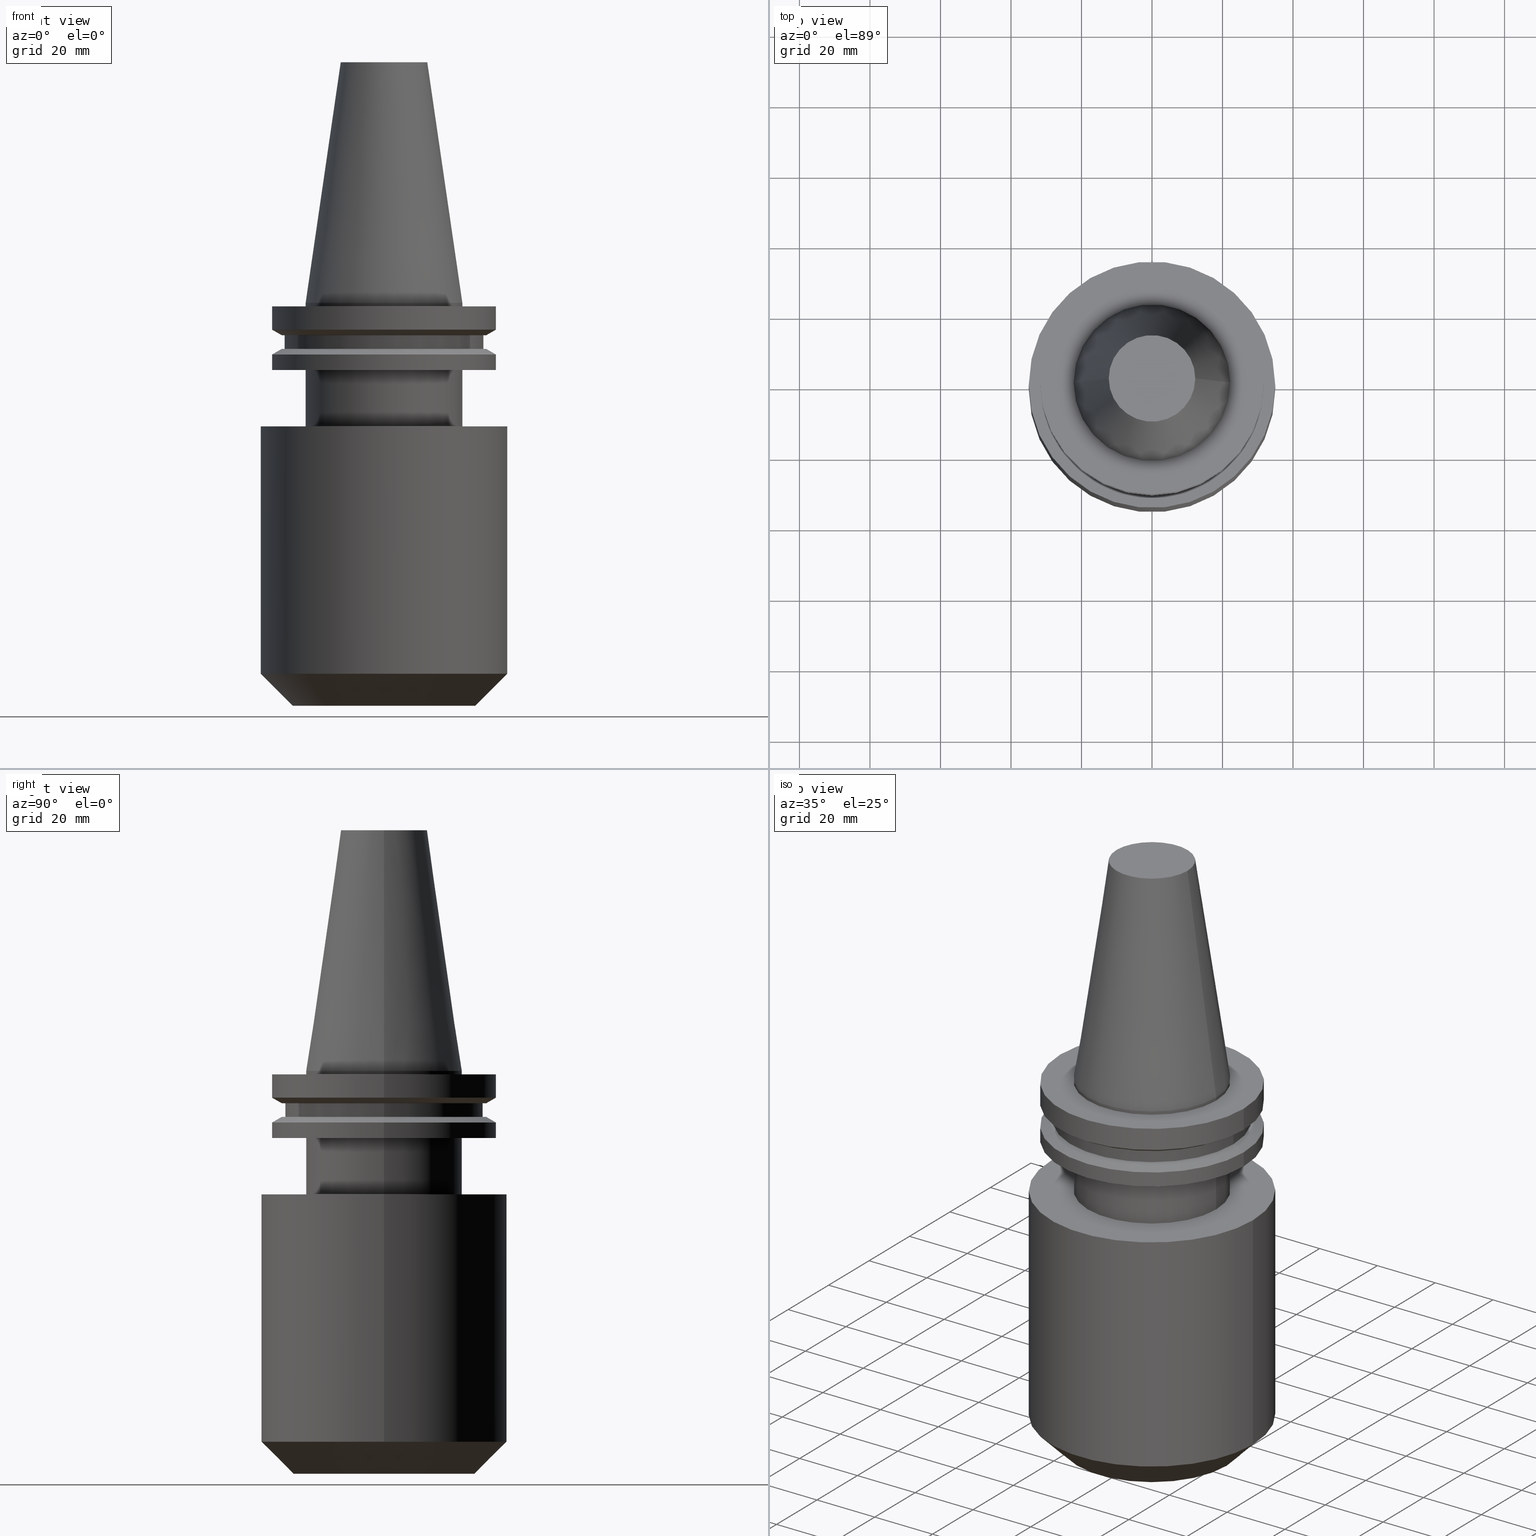
[diagram: canonical four-view strip — front | top / right | iso, engineering-drawing reading convention]
A machine part, canonical four-view strip (front | top / right | iso — engineering-drawing reading convention). The complete STEP part file that produces these views, byte-faithful:
ISO-10303-21;
HEADER;
FILE_DESCRIPTION (( 'STEP AP203' ),
    '1' );
FILE_NAME ('BCV40-EM1_250-4_5.STEP',
    '2022-02-23T14:51:00',
    ( '' ),
    ( '' ),
    'SwSTEP 2.0',
    'SolidWorks 2021',
    '' );
FILE_SCHEMA (( 'CONFIG_CONTROL_DESIGN' ));
ENDSEC;

DATA;
#1 = DIRECTION ( 'NONE',  ( -0.000000000000000000, -0.000000000000000000, 1.000000000000000000 ) ) ;
#2 = CONICAL_SURFACE ( 'NONE', #367, 31.75000000000000000, 1.047197551196597853 ) ;
#3 = LINE ( 'NONE', #270, #128 ) ;
#4 = FACE_OUTER_BOUND ( 'NONE', #714, .T. ) ;
#5 = CARTESIAN_POINT ( 'NONE',  ( 0.000000000000000000, 0.000000000000000000, 68.25000000000000000 ) ) ;
#6 = CARTESIAN_POINT ( 'NONE',  ( -28.17999999999999972, 3.451054679997241634E-15, 68.25000000000000000 ) ) ;
#7 = DIRECTION ( 'NONE',  ( -0.000000000000000000, -0.000000000000000000, 1.000000000000000000 ) ) ;
#8 = CARTESIAN_POINT ( 'NONE',  ( 0.000000000000000000, 0.000000000000000000, 68.25000000000000000 ) ) ;
#9 = DIRECTION ( 'NONE',  ( -1.000000000000000000, 0.000000000000000000, -0.000000000000000000 ) ) ;
#10 = ADVANCED_FACE ( 'NONE', ( #363 ), #232, .T. ) ;
#11 = EDGE_CURVE ( 'NONE', #94, #536, #558, .T. ) ;
#12 = EDGE_LOOP ( 'NONE', ( #332, #701, #640, #564 ) ) ;
#13 = CIRCLE ( 'NONE', #646, 31.75000000000000000 ) ;
#14 = AXIS2_PLACEMENT_3D ( 'NONE', #670, #194, #132 ) ;
#15 = ORIENTED_EDGE ( 'NONE', *, *, #431, .F. ) ;
#16 = DIRECTION ( 'NONE',  ( -0.000000000000000000, -0.000000000000000000, 1.000000000000000000 ) ) ;
#17 = COORDINATED_UNIVERSAL_TIME_OFFSET ( 6, 0, .BEHIND. ) ;
#18 = ORIENTED_EDGE ( 'NONE', *, *, #478, .F. ) ;
#19 = DIRECTION ( 'NONE',  ( 0.8660254037844387076, 1.060575238724906915E-16, -0.4999999999999998890 ) ) ;
#20 = PERSON_AND_ORGANIZATION ( #126, #246 ) ;
#21 = ORIENTED_EDGE ( 'NONE', *, *, #75, .F. ) ;
#22 = ORIENTED_EDGE ( 'NONE', *, *, #479, .F. ) ;
#23 = ORIENTED_EDGE ( 'NONE', *, *, #327, .T. ) ;
#24 = DIRECTION ( 'NONE',  ( 1.000000000000000000, 0.000000000000000000, 0.000000000000000000 ) ) ;
#25 = CC_DESIGN_PERSON_AND_ORGANIZATION_ASSIGNMENT ( #145, #681, ( #425 ) ) ;
#26 = COORDINATED_UNIVERSAL_TIME_OFFSET ( 6, 0, .BEHIND. ) ;
#27 = CARTESIAN_POINT ( 'NONE',  ( 0.000000000000000000, 0.000000000000000000, -35.04999999999999716 ) ) ;
#28 = ORIENTED_EDGE ( 'NONE', *, *, #830, .F. ) ;
#29 = AXIS2_PLACEMENT_3D ( 'NONE', #754, #276, #550 ) ;
#30 = PLANE ( 'NONE',  #244 ) ;
#31 = CARTESIAN_POINT ( 'NONE',  ( 0.000000000000000000, 0.000000000000000000, 0.000000000000000000 ) ) ;
#32 = ORIENTED_EDGE ( 'NONE', *, *, #274, .F. ) ;
#33 = CARTESIAN_POINT ( 'NONE',  ( -15.87500000000000000, 1.944126793646423238E-15, -114.2999999999999972 ) ) ;
#34 = EDGE_LOOP ( 'NONE', ( #500, #263 ) ) ;
#35 = DIRECTION ( 'NONE',  ( 1.000000000000000000, 0.000000000000000000, 0.000000000000000000 ) ) ;
#36 = COORDINATED_UNIVERSAL_TIME_OFFSET ( 6, 0, .BEHIND. ) ;
#37 = CARTESIAN_POINT ( 'NONE',  ( 28.17999999999999972, 0.000000000000000000, 68.25000000000000000 ) ) ;
#38 = ORIENTED_EDGE ( 'NONE', *, *, #310, .T. ) ;
#39 = DIRECTION ( 'NONE',  ( -0.1443082272672999711, 0.000000000000000000, -0.9895327864921755756 ) ) ;
#40 = EDGE_CURVE ( 'NONE', #390, #513, #747, .T. ) ;
#41 = VERTEX_POINT ( 'NONE', #554 ) ;
#42 = DIRECTION ( 'NONE',  ( -0.000000000000000000, -0.000000000000000000, 1.000000000000000000 ) ) ;
#43 = VECTOR ( 'NONE', #74, 1000.000000000000000 ) ;
#44 = DATE_AND_TIME ( #308, #58 ) ;
#45 = CC_DESIGN_SECURITY_CLASSIFICATION ( #594, ( #85 ) ) ;
#46 = ORIENTED_EDGE ( 'NONE', *, *, #542, .T. ) ;
#47 = CARTESIAN_POINT ( 'NONE',  ( 22.22500000000000142, 0.000000000000000000, -19.04999999999999716 ) ) ;
#48 = DIRECTION ( 'NONE',  ( 0.8660254037844389297, 0.000000000000000000, 0.4999999999999995004 ) ) ;
#49 = ORIENTED_EDGE ( 'NONE', *, *, #849, .T. ) ;
#50 = DIRECTION ( 'NONE',  ( 0.000000000000000000, 0.000000000000000000, -1.000000000000000000 ) ) ;
#51 = ORIENTED_EDGE ( 'NONE', *, *, #849, .F. ) ;
#52 = DIRECTION ( 'NONE',  ( 1.000000000000000000, 0.000000000000000000, 0.000000000000000000 ) ) ;
#53 = CARTESIAN_POINT ( 'NONE',  ( 0.000000000000000000, 0.000000000000000000, -19.04999999999999716 ) ) ;
#54 = EDGE_LOOP ( 'NONE', ( #828, #757 ) ) ;
#55 = AXIS2_PLACEMENT_3D ( 'NONE', #149, #481, #610 ) ;
#56 = FACE_BOUND ( 'NONE', #238, .T. ) ;
#57 = AXIS2_PLACEMENT_3D ( 'NONE', #395, #791, #663 ) ;
#58 = LOCAL_TIME ( 8, 51, 0.000000000000000000, #36 ) ;
#59 = DIRECTION ( 'NONE',  ( 0.000000000000000000, 0.000000000000000000, -1.000000000000000000 ) ) ;
#60 = EDGE_CURVE ( 'NONE', #41, #95, #396, .T. ) ;
#61 = ORIENTED_EDGE ( 'NONE', *, *, #357, .T. ) ;
#62 = PLANE ( 'NONE',  #617 ) ;
#63 = DIRECTION ( 'NONE',  ( 1.000000000000000000, 0.000000000000000000, 0.000000000000000000 ) ) ;
#64 = CYLINDRICAL_SURFACE ( 'NONE', #14, 34.95000000000000284 ) ;
#65 = EDGE_CURVE ( 'NONE', #516, #364, #545, .T. ) ;
#66 = DIRECTION ( 'NONE',  ( -0.000000000000000000, -0.000000000000000000, 1.000000000000000000 ) ) ;
#67 = EDGE_CURVE ( 'NONE', #838, #120, #710, .T. ) ;
#68 = AXIS2_PLACEMENT_3D ( 'NONE', #829, #628, #87 ) ;
#69 = AXIS2_PLACEMENT_3D ( 'NONE', #8, #543, #376 ) ;
#70 = ADVANCED_FACE ( 'NONE', ( #129 ), #602, .T. ) ;
#71 = AXIS2_PLACEMENT_3D ( 'NONE', #31, #811, #428 ) ;
#72 = DIRECTION ( 'NONE',  ( -0.000000000000000000, -0.000000000000000000, 1.000000000000000000 ) ) ;
#73 = LINE ( 'NONE', #713, #293 ) ;
#74 = DIRECTION ( 'NONE',  ( -0.8660254037844389297, 1.060575238724907285E-16, 0.4999999999999995004 ) ) ;
#75 = EDGE_CURVE ( 'NONE', #513, #390, #816, .T. ) ;
#76 = PERSON_AND_ORGANIZATION ( #126, #246 ) ;
#77 = EDGE_LOOP ( 'NONE', ( #51, #147, #629, #730 ) ) ;
#78 = LINE ( 'NONE', #486, #672 ) ;
#79 = PERSON_AND_ORGANIZATION_ROLE ( 'creator' ) ;
#80 = AXIS2_PLACEMENT_3D ( 'NONE', #613, #16, #776 ) ;
#81 = CIRCLE ( 'NONE', #207, 22.22500000000000142 ) ;
#82 = AXIS2_PLACEMENT_3D ( 'NONE', #469, #59, #846 ) ;
#83 = ORIENTED_EDGE ( 'NONE', *, *, #386, .T. ) ;
#84 = DIRECTION ( 'NONE',  ( -0.000000000000000000, -0.000000000000000000, 1.000000000000000000 ) ) ;
#85 = PRODUCT_DEFINITION_FORMATION_WITH_SPECIFIED_SOURCE ( 'ANY', '', #425, .NOT_KNOWN. ) ;
#86 = MECHANICAL_CONTEXT ( 'NONE', #335, 'mechanical' ) ;
#87 = DIRECTION ( 'NONE',  ( 1.000000000000000000, 0.000000000000000000, 0.000000000000000000 ) ) ;
#88 = EDGE_LOOP ( 'NONE', ( #312, #309 ) ) ;
#89 = CARTESIAN_POINT ( 'NONE',  ( 0.000000000000000000, 0.000000000000000000, -9.205000000000005400 ) ) ;
#90 = CALENDAR_DATE ( 2022, 23, 2 ) ;
#91 = ORIENTED_EDGE ( 'NONE', *, *, #450, .F. ) ;
#92 = LINE ( 'NONE', #344, #789 ) ;
#93 = ORIENTED_EDGE ( 'NONE', *, *, #203, .F. ) ;
#94 = VERTEX_POINT ( 'NONE', #136 ) ;
#95 = VERTEX_POINT ( 'NONE', #734 ) ;
#96 = CARTESIAN_POINT ( 'NONE',  ( 0.000000000000000000, 31.75000000000000000, -0.9999999999999995559 ) ) ;
#97 = CARTESIAN_POINT ( 'NONE',  ( 31.74999999999999289, 0.000000000000000000, -19.04999999999999716 ) ) ;
#98 = ORIENTED_EDGE ( 'NONE', *, *, #518, .F. ) ;
#99 = ORIENTED_EDGE ( 'NONE', *, *, #447, .T. ) ;
#100 = CIRCLE ( 'NONE', #382, 22.22500000000000142 ) ;
#101 = DIRECTION ( 'NONE',  ( 1.000000000000000000, 0.000000000000000000, 0.000000000000000000 ) ) ;
#102 = AXIS2_PLACEMENT_3D ( 'NONE', #627, #169, #436 ) ;
#103 = CC_DESIGN_APPROVAL ( #675, ( #85 ) ) ;
#104 = ORIENTED_EDGE ( 'NONE', *, *, #399, .F. ) ;
#105 = DIRECTION ( 'NONE',  ( 1.000000000000000000, 0.000000000000000000, 0.000000000000000000 ) ) ;
#106 = EDGE_LOOP ( 'NONE', ( #248, #812, #767, #321 ) ) ;
#107 = CARTESIAN_POINT ( 'NONE',  ( 0.000000000000000000, 0.000000000000000000, -13.05499999999999794 ) ) ;
#108 = ORIENTED_EDGE ( 'NONE', *, *, #355, .F. ) ;
#109 = DIRECTION ( 'NONE',  ( 1.000000000000000000, 0.000000000000000000, 0.000000000000000000 ) ) ;
#110 = EDGE_CURVE ( 'NONE', #516, #575, #330, .T. ) ;
#111 = CARTESIAN_POINT ( 'NONE',  ( -22.22500000000000142, 0.000000000000000000, 0.000000000000000000 ) ) ;
#112 = VERTEX_POINT ( 'NONE', #394 ) ;
#113 = FACE_OUTER_BOUND ( 'NONE', #12, .T. ) ;
#114 = AXIS2_PLACEMENT_3D ( 'NONE', #715, #637, #35 ) ;
#115 = PERSON_AND_ORGANIZATION_ROLE ( 'classification_officer' ) ;
#116 = CIRCLE ( 'NONE', #383, 12.27178102086201150 ) ;
#117 = ORIENTED_EDGE ( 'NONE', *, *, #156, .T. ) ;
#118 = CC_DESIGN_PERSON_AND_ORGANIZATION_ASSIGNMENT ( #685, #79, ( #744 ) ) ;
#119 = LINE ( 'NONE', #130, #139 ) ;
#120 = VERTEX_POINT ( 'NONE', #660 ) ;
#121 = FACE_OUTER_BOUND ( 'NONE', #106, .T. ) ;
#122 = ADVANCED_FACE ( 'NONE', ( #853 ), #779, .F. ) ;
#123 = CARTESIAN_POINT ( 'NONE',  ( 15.87500000000000000, 0.000000000000000000, -114.2999999999999972 ) ) ;
#124 = EDGE_CURVE ( 'NONE', #838, #625, #474, .T. ) ;
#125 = CARTESIAN_POINT ( 'NONE',  ( 0.000000000000000000, 0.000000000000000000, -9.205000000000005400 ) ) ;
#126 = PERSON ( 'UNSPECIFIED', 'UNSPECIFIED', 'UNSPECIFIED', ('UNSPECIFIED'), ('UNSPECIFIED'), ('UNSPECIFIED') ) ;
#127 = AXIS2_PLACEMENT_3D ( 'NONE', #284, #84, #405 ) ;
#128 = VECTOR ( 'NONE', #340, 1000.000000000000000 ) ;
#129 = FACE_OUTER_BOUND ( 'NONE', #786, .T. ) ;
#130 = CARTESIAN_POINT ( 'NONE',  ( -31.75000000000000000, 3.888253587292846476E-15, 68.25000000000000000 ) ) ;
#131 = EDGE_CURVE ( 'NONE', #562, #372, #173, .T. ) ;
#132 = DIRECTION ( 'NONE',  ( 1.000000000000000000, 0.000000000000000000, 0.000000000000000000 ) ) ;
#133 = LINE ( 'NONE', #679, #778 ) ;
#134 = CARTESIAN_POINT ( 'NONE',  ( 0.000000000000000000, 28.17999999999999972, -13.05499999999999794 ) ) ;
#135 = AXIS2_PLACEMENT_3D ( 'NONE', #836, #249, #245 ) ;
#136 = CARTESIAN_POINT ( 'NONE',  ( -31.75000000000000000, 3.888253587292846476E-15, -1.000000000000000888 ) ) ;
#138 = EDGE_CURVE ( 'NONE', #228, #381, #186, .T. ) ;
#137 = EDGE_LOOP ( 'NONE', ( #723, #294, #460, #379 ) ) ;
#139 = VECTOR ( 'NONE', #854, 1000.000000000000000 ) ;
#140 = ADVANCED_FACE ( 'NONE', ( #154 ), #2, .T. ) ;
#141 = VECTOR ( 'NONE', #733, 1000.000000000000000 ) ;
#142 = FACE_OUTER_BOUND ( 'NONE', #654, .T. ) ;
#143 = DIRECTION ( 'NONE',  ( 1.000000000000000000, 0.000000000000000000, 0.000000000000000000 ) ) ;
#144 = LINE ( 'NONE', #623, #43 ) ;
#145 = PERSON_AND_ORGANIZATION ( #126, #246 ) ;
#146 = ORIENTED_EDGE ( 'NONE', *, *, #694, .T. ) ;
#147 = ORIENTED_EDGE ( 'NONE', *, *, #40, .F. ) ;
#148 = EDGE_CURVE ( 'NONE', #364, #289, #410, .T. ) ;
#149 = CARTESIAN_POINT ( 'NONE',  ( 0.000000000000000000, 0.000000000000000000, -19.04999999999999716 ) ) ;
#150 = DIRECTION ( 'NONE',  ( 1.000000000000000000, 0.000000000000000000, 0.000000000000000000 ) ) ;
#151 = VECTOR ( 'NONE', #19, 1000.000000000000000 ) ;
#152 = CIRCLE ( 'NONE', #57, 31.75000000000000000 ) ;
#153 = DIRECTION ( 'NONE',  ( -0.000000000000000000, -0.000000000000000000, 1.000000000000000000 ) ) ;
#154 = FACE_OUTER_BOUND ( 'NONE', #250, .T. ) ;
#155 = DATE_AND_TIME ( #281, #790 ) ;
#156 = EDGE_CURVE ( 'NONE', #652, #553, #144, .T. ) ;
#157 = DIRECTION ( 'NONE',  ( 1.000000000000000000, 0.000000000000000000, 0.000000000000000000 ) ) ;
#158 = VERTEX_POINT ( 'NONE', #212 ) ;
#159 = EDGE_LOOP ( 'NONE', ( #177, #278 ) ) ;
#160 = DIRECTION ( 'NONE',  ( -0.000000000000000000, -0.000000000000000000, 1.000000000000000000 ) ) ;
#161 = DIRECTION ( 'NONE',  ( 1.000000000000000000, 0.000000000000000000, 0.000000000000000000 ) ) ;
#162 = ORIENTED_EDGE ( 'NONE', *, *, #478, .T. ) ;
#163 = DIRECTION ( 'NONE',  ( -0.000000000000000000, -0.000000000000000000, 1.000000000000000000 ) ) ;
#164 = ORIENTED_EDGE ( 'NONE', *, *, #542, .F. ) ;
#165 = DIRECTION ( 'NONE',  ( 0.000000000000000000, 0.000000000000000000, -1.000000000000000000 ) ) ;
#166 = DIRECTION ( 'NONE',  ( -0.000000000000000000, -0.000000000000000000, 1.000000000000000000 ) ) ;
#167 = APPROVAL_STATUS ( 'not_yet_approved' ) ;
#168 = ORIENTED_EDGE ( 'NONE', *, *, #657, .F. ) ;
#169 = DIRECTION ( 'NONE',  ( -0.000000000000000000, -0.000000000000000000, 1.000000000000000000 ) ) ;
#170 = EDGE_CURVE ( 'NONE', #41, #372, #556, .T. ) ;
#171 = EDGE_LOOP ( 'NONE', ( #716, #855, #495, #548 ) ) ;
#172 = EDGE_CURVE ( 'NONE', #235, #601, #326, .T. ) ;
#173 = CIRCLE ( 'NONE', #221, 22.22500000000000142 ) ;
#174 = CYLINDRICAL_SURFACE ( 'NONE', #265, 31.75000000000000000 ) ;
#175 = AXIS2_PLACEMENT_3D ( 'NONE', #586, #253, #52 ) ;
#176 = LINE ( 'NONE', #577, #738 ) ;
#177 = ORIENTED_EDGE ( 'NONE', *, *, #274, .T. ) ;
#178 = DIRECTION ( 'NONE',  ( 1.000000000000000000, 0.000000000000000000, 0.000000000000000000 ) ) ;
#179 = DIRECTION ( 'NONE',  ( 0.000000000000000000, 0.000000000000000000, -1.000000000000000000 ) ) ;
#180 = ORIENTED_EDGE ( 'NONE', *, *, #694, .F. ) ;
#181 = DIRECTION ( 'NONE',  ( -0.000000000000000000, -0.000000000000000000, 1.000000000000000000 ) ) ;
#182 = ORIENTED_EDGE ( 'NONE', *, *, #579, .T. ) ;
#183 = DIRECTION ( 'NONE',  ( -0.000000000000000000, -0.000000000000000000, 1.000000000000000000 ) ) ;
#184 = CC_DESIGN_PERSON_AND_ORGANIZATION_ASSIGNMENT ( #241, #844, ( #85 ) ) ;
#185 = CARTESIAN_POINT ( 'NONE',  ( -34.95000000000000284, 4.280140563019999423E-15, -105.2000000000000028 ) ) ;
#186 = CIRCLE ( 'NONE', #466, 34.95000000000000284 ) ;
#187 = AXIS2_PLACEMENT_3D ( 'NONE', #665, #400, #739 ) ;
#188 = DIRECTION ( 'NONE',  ( -1.000000000000000000, 0.000000000000000000, -0.000000000000000000 ) ) ;
#189 = EDGE_CURVE ( 'NONE', #612, #536, #78, .T. ) ;
#190 = FACE_OUTER_BOUND ( 'NONE', #280, .T. ) ;
#191 = CARTESIAN_POINT ( 'NONE',  ( -34.95000000000000284, 4.280140563019999423E-15, 0.000000000000000000 ) ) ;
#192 = DIRECTION ( 'NONE',  ( -0.000000000000000000, -0.000000000000000000, 1.000000000000000000 ) ) ;
#193 = VERTEX_POINT ( 'NONE', #216 ) ;
#194 = DIRECTION ( 'NONE',  ( -0.000000000000000000, -0.000000000000000000, 1.000000000000000000 ) ) ;
#195 = CIRCLE ( 'NONE', #796, 34.95000000000000284 ) ;
#196 = CIRCLE ( 'NONE', #689, 31.75000000000000000 ) ;
#197 = CIRCLE ( 'NONE', #677, 25.84999999999996945 ) ;
#198 = CARTESIAN_POINT ( 'NONE',  ( 0.000000000000000000, 0.000000000000000000, -114.2999999999999972 ) ) ;
#199 = AXIS2_PLACEMENT_3D ( 'NONE', #678, #595, #608 ) ;
#200 = CARTESIAN_POINT ( 'NONE',  ( 0.000000000000000000, 0.000000000000000000, -35.04999999999999716 ) ) ;
#201 = DIRECTION ( 'NONE',  ( 1.000000000000000000, 0.000000000000000000, 0.000000000000000000 ) ) ;
#202 = EDGE_CURVE ( 'NONE', #502, #570, #614, .T. ) ;
#203 = EDGE_CURVE ( 'NONE', #652, #239, #644, .T. ) ;
#204 = CARTESIAN_POINT ( 'NONE',  ( 31.75000000000000000, 0.000000000000000000, -7.605276606597335842 ) ) ;
#205 = DIRECTION ( 'NONE',  ( -0.000000000000000000, -0.000000000000000000, 1.000000000000000000 ) ) ;
#206 = AXIS2_PLACEMENT_3D ( 'NONE', #107, #42, #178 ) ;
#207 = AXIS2_PLACEMENT_3D ( 'NONE', #587, #254, #389 ) ;
#208 = FACE_OUTER_BOUND ( 'NONE', #611, .T. ) ;
#209 = DIRECTION ( 'NONE',  ( -1.000000000000000000, 0.000000000000000000, 0.000000000000000000 ) ) ;
#210 =( NAMED_UNIT ( * ) SI_UNIT ( $, .STERADIAN. ) SOLID_ANGLE_UNIT ( ) );
#211 = ADVANCED_FACE ( 'NONE', ( #416, #688 ), #759, .F. ) ;
#212 = CARTESIAN_POINT ( 'NONE',  ( -34.95000000000000284, 4.280140563019999423E-15, -35.04999999999999716 ) ) ;
#213 = APPROVAL ( #753, 'UNSPECIFIED' ) ;
#214 = DIRECTION ( 'NONE',  ( -0.000000000000000000, -0.000000000000000000, 1.000000000000000000 ) ) ;
#215 = DIRECTION ( 'NONE',  ( 1.000000000000000000, 0.000000000000000000, 0.000000000000000000 ) ) ;
#216 = CARTESIAN_POINT ( 'NONE',  ( 22.22500000000000142, 0.000000000000000000, -1.000000000000000888 ) ) ;
#217 = ADVANCED_FACE ( 'NONE', ( #412 ), #348, .F. ) ;
#218 = DIRECTION ( 'NONE',  ( 1.000000000000000000, 0.000000000000000000, 0.000000000000000000 ) ) ;
#219 = ORIENTED_EDGE ( 'NONE', *, *, #288, .F. ) ;
#220 = ADVANCED_FACE ( 'NONE', ( #240, #630 ), #30, .F. ) ;
#221 = AXIS2_PLACEMENT_3D ( 'NONE', #696, #7, #683 ) ;
#222 = ORIENTED_EDGE ( 'NONE', *, *, #170, .F. ) ;
#223 = VECTOR ( 'NONE', #768, 999.9999999999998863 ) ;
#224 = CIRCLE ( 'NONE', #490, 34.95000000000000284 ) ;
#225 = DIRECTION ( 'NONE',  ( 1.000000000000000000, 0.000000000000000000, 0.000000000000000000 ) ) ;
#226 = DIRECTION ( 'NONE',  ( 1.000000000000000000, 0.000000000000000000, 0.000000000000000000 ) ) ;
#227 = CARTESIAN_POINT ( 'NONE',  ( 28.97919780457008088, 3.718590885307660666E-15, -13.05499999999999794 ) ) ;
#228 = VERTEX_POINT ( 'NONE', #643 ) ;
#229 = EDGE_LOOP ( 'NONE', ( #650, #741, #99, #622 ) ) ;
#230 = FACE_OUTER_BOUND ( 'NONE', #621, .T. ) ;
#231 = ORIENTED_EDGE ( 'NONE', *, *, #60, .T. ) ;
#232 = CYLINDRICAL_SURFACE ( 'NONE', #255, 31.75000000000000000 ) ;
#233 = DIRECTION ( 'NONE',  ( -0.000000000000000000, -0.000000000000000000, 1.000000000000000000 ) ) ;
#234 = CARTESIAN_POINT ( 'NONE',  ( 0.000000000000000000, 0.000000000000000000, 0.000000000000000000 ) ) ;
#235 = VERTEX_POINT ( 'NONE', #296 ) ;
#236 = DIRECTION ( 'NONE',  ( 0.000000000000000000, -0.000000000000000000, 1.000000000000000000 ) ) ;
#237 = ADVANCED_FACE ( 'NONE', ( #504, #641 ), #649, .F. ) ;
#238 = EDGE_LOOP ( 'NONE', ( #287, #658 ) ) ;
#239 = VERTEX_POINT ( 'NONE', #377 ) ;
#240 = FACE_BOUND ( 'NONE', #34, .T. ) ;
#241 = PERSON_AND_ORGANIZATION ( #126, #246 ) ;
#242 = PLANE ( 'NONE',  #581 ) ;
#243 = EDGE_CURVE ( 'NONE', #705, #158, #195, .T. ) ;
#244 = AXIS2_PLACEMENT_3D ( 'NONE', #96, #782, #785 ) ;
#245 = DIRECTION ( 'NONE',  ( 1.000000000000000000, 0.000000000000000000, 0.000000000000000000 ) ) ;
#246 = ORGANIZATION ( 'UNSPECIFIED', 'UNSPECIFIED', '' ) ;
#247 = CYLINDRICAL_SURFACE ( 'NONE', #175, 22.22500000000000142 ) ;
#248 = ORIENTED_EDGE ( 'NONE', *, *, #574, .F. ) ;
#249 = DIRECTION ( 'NONE',  ( -0.000000000000000000, -0.000000000000000000, 1.000000000000000000 ) ) ;
#250 = EDGE_LOOP ( 'NONE', ( #452, #32, #815, #23 ) ) ;
#251 = CARTESIAN_POINT ( 'NONE',  ( -28.17999999999999972, 3.451054679997241634E-15, -13.05499999999999794 ) ) ;
#252 = ORIENTED_EDGE ( 'NONE', *, *, #607, .F. ) ;
#253 = DIRECTION ( 'NONE',  ( -0.000000000000000000, -0.000000000000000000, 1.000000000000000000 ) ) ;
#254 = DIRECTION ( 'NONE',  ( -0.000000000000000000, -0.000000000000000000, 1.000000000000000000 ) ) ;
#255 = AXIS2_PLACEMENT_3D ( 'NONE', #498, #347, #215 ) ;
#256 = CIRCLE ( 'NONE', #798, 31.74999999999999289 ) ;
#257 = CC_DESIGN_APPROVAL ( #213, ( #744 ) ) ;
#258 = DIRECTION ( 'NONE',  ( -0.000000000000000000, -0.000000000000000000, 1.000000000000000000 ) ) ;
#259 = DIRECTION ( 'NONE',  ( 1.000000000000000000, 0.000000000000000000, 0.000000000000000000 ) ) ;
#260 = ORIENTED_EDGE ( 'NONE', *, *, #684, .T. ) ;
#261 = ADVANCED_FACE ( 'NONE', ( #320 ), #174, .T. ) ;
#262 = DIRECTION ( 'NONE',  ( 1.000000000000000000, 0.000000000000000000, 0.000000000000000000 ) ) ;
#263 = ORIENTED_EDGE ( 'NONE', *, *, #458, .F. ) ;
#264 = FACE_OUTER_BOUND ( 'NONE', #137, .T. ) ;
#265 = AXIS2_PLACEMENT_3D ( 'NONE', #370, #567, #831 ) ;
#266 = VERTEX_POINT ( 'NONE', #702 ) ;
#267 = ORIENTED_EDGE ( 'NONE', *, *, #817, .F. ) ;
#268 = AXIS2_PLACEMENT_3D ( 'NONE', #788, #50, #522 ) ;
#269 = FACE_BOUND ( 'NONE', #700, .T. ) ;
#270 = CARTESIAN_POINT ( 'NONE',  ( -22.22500000000000142, 2.721777511104992849E-15, 68.25000000000000000 ) ) ;
#271 = PLANE ( 'NONE',  #199 ) ;
#272 = DIRECTION ( 'NONE',  ( -0.000000000000000000, -0.000000000000000000, 1.000000000000000000 ) ) ;
#273 = CARTESIAN_POINT ( 'NONE',  ( 22.22500000000000142, 0.000000000000000000, 68.25000000000000000 ) ) ;
#274 = EDGE_CURVE ( 'NONE', #120, #838, #406, .T. ) ;
#275 = CARTESIAN_POINT ( 'NONE',  ( -22.22500000000000142, 2.721777511104992849E-15, -19.04999999999999716 ) ) ;
#276 = DIRECTION ( 'NONE',  ( -0.000000000000000000, -0.000000000000000000, 1.000000000000000000 ) ) ;
#277 = CARTESIAN_POINT ( 'NONE',  ( 0.000000000000000000, 0.000000000000000000, -114.2999999999999972 ) ) ;
#278 = ORIENTED_EDGE ( 'NONE', *, *, #67, .T. ) ;
#279 = AXIS2_PLACEMENT_3D ( 'NONE', #843, #181, #101 ) ;
#280 = EDGE_LOOP ( 'NONE', ( #511, #117, #810, #393 ) ) ;
#281 = CALENDAR_DATE ( 2022, 23, 2 ) ;
#282 = ADVANCED_FACE ( 'NONE', ( #451 ), #573, .T. ) ;
#283 = ORIENTED_EDGE ( 'NONE', *, *, #124, .T. ) ;
#284 = CARTESIAN_POINT ( 'NONE',  ( 0.000000000000000000, 0.000000000000000000, 0.000000000000000000 ) ) ;
#285 = COORDINATED_UNIVERSAL_TIME_OFFSET ( 6, 0, .BEHIND. ) ;
#286 = ORIENTED_EDGE ( 'NONE', *, *, #202, .T. ) ;
#287 = ORIENTED_EDGE ( 'NONE', *, *, #431, .T. ) ;
#288 = EDGE_CURVE ( 'NONE', #575, #289, #100, .T. ) ;
#289 = VERTEX_POINT ( 'NONE', #47 ) ;
#290 = DIRECTION ( 'NONE',  ( -0.000000000000000000, -0.000000000000000000, 1.000000000000000000 ) ) ;
#291 = FACE_OUTER_BOUND ( 'NONE', #430, .T. ) ;
#292 = DIRECTION ( 'NONE',  ( -0.000000000000000000, -0.000000000000000000, 1.000000000000000000 ) ) ;
#293 = VECTOR ( 'NONE', #72, 1000.000000000000000 ) ;
#294 = ORIENTED_EDGE ( 'NONE', *, *, #170, .T. ) ;
#295 = EDGE_CURVE ( 'NONE', #381, #228, #520, .T. ) ;
#296 = CARTESIAN_POINT ( 'NONE',  ( -28.17999999999999972, 3.451054679997241634E-15, -9.204999999999991189 ) ) ;
#297 = EDGE_CURVE ( 'NONE', #120, #626, #510, .T. ) ;
#298 = VERTEX_POINT ( 'NONE', #365 ) ;
#299 = CARTESIAN_POINT ( 'NONE',  ( 0.000000000000000000, 0.000000000000000000, 68.25000000000000000 ) ) ;
#300 = ORIENTED_EDGE ( 'NONE', *, *, #817, .T. ) ;
#301 = DIRECTION ( 'NONE',  ( 1.000000000000000000, 0.000000000000000000, 0.000000000000000000 ) ) ;
#302 = COORDINATED_UNIVERSAL_TIME_OFFSET ( 6, 0, .BEHIND. ) ;
#303 = EDGE_CURVE ( 'NONE', #612, #553, #437, .T. ) ;
#304 = ORIENTED_EDGE ( 'NONE', *, *, #288, .T. ) ;
#305 = DIRECTION ( 'NONE',  ( 1.000000000000000000, 0.000000000000000000, 0.000000000000000000 ) ) ;
#306 = ORIENTED_EDGE ( 'NONE', *, *, #138, .T. ) ;
#307 = DIRECTION ( 'NONE',  ( 0.000000000000000000, -0.000000000000000000, 1.000000000000000000 ) ) ;
#308 = CALENDAR_DATE ( 2022, 23, 2 ) ;
#309 = ORIENTED_EDGE ( 'NONE', *, *, #172, .T. ) ;
#310 = EDGE_CURVE ( 'NONE', #536, #94, #777, .T. ) ;
#311 = PLANE ( 'NONE',  #818 ) ;
#312 = ORIENTED_EDGE ( 'NONE', *, *, #450, .T. ) ;
#313 = AXIS2_PLACEMENT_3D ( 'NONE', #585, #160, #301 ) ;
#314 = PRODUCT_RELATED_PRODUCT_CATEGORY ( 'detail', '', ( #425 ) ) ;
#315 = CARTESIAN_POINT ( 'NONE',  ( 0.000000000000000000, 0.000000000000000000, -105.2000000000000028 ) ) ;
#316 = APPROVAL_PERSON_ORGANIZATION ( #20, #213, #414 ) ;
#317 = ORIENTED_EDGE ( 'NONE', *, *, #706, .T. ) ;
#318 = FACE_OUTER_BOUND ( 'NONE', #362, .T. ) ;
#319 = EDGE_CURVE ( 'NONE', #95, #562, #446, .T. ) ;
#320 = FACE_OUTER_BOUND ( 'NONE', #847, .T. ) ;
#321 = ORIENTED_EDGE ( 'NONE', *, *, #131, .F. ) ;
#322 = DIRECTION ( 'NONE',  ( -0.000000000000000000, -0.000000000000000000, 1.000000000000000000 ) ) ;
#323 = DIRECTION ( 'NONE',  ( 1.000000000000000000, 0.000000000000000000, 0.000000000000000000 ) ) ;
#324 = CARTESIAN_POINT ( 'NONE',  ( -22.22500000000000142, 2.721777511104992849E-15, 68.25000000000000000 ) ) ;
#325 = CARTESIAN_POINT ( 'NONE',  ( 0.000000000000000000, 0.000000000000000000, 0.000000000000000000 ) ) ;
#326 = CIRCLE ( 'NONE', #29, 28.17999999999999972 ) ;
#327 = EDGE_CURVE ( 'NONE', #626, #625, #13, .T. ) ;
#328 = CIRCLE ( 'NONE', #632, 28.17999999999999972 ) ;
#329 = ADVANCED_FACE ( 'NONE', ( #708 ), #615, .T. ) ;
#330 = LINE ( 'NONE', #324, #350 ) ;
#331 = CARTESIAN_POINT ( 'NONE',  ( -31.75000000000000000, 3.888253587292846476E-15, 68.25000000000000000 ) ) ;
#332 = ORIENTED_EDGE ( 'NONE', *, *, #156, .F. ) ;
#333 = ADVANCED_FACE ( 'NONE', ( #113 ), #711, .T. ) ;
#334 = CARTESIAN_POINT ( 'NONE',  ( 31.75000000000000000, 0.000000000000000000, 68.25000000000000000 ) ) ;
#335 = APPLICATION_CONTEXT ( 'configuration controlled 3d designs of mechanical parts and assemblies' ) ;
#336 = DIRECTION ( 'NONE',  ( 0.000000000000000000, 0.000000000000000000, -1.000000000000000000 ) ) ;
#337 = VECTOR ( 'NONE', #39, 999.9999999999998863 ) ;
#338 = CIRCLE ( 'NONE', #418, 15.87500000000000000 ) ;
#339 = VECTOR ( 'NONE', #214, 1000.000000000000000 ) ;
#340 = DIRECTION ( 'NONE',  ( -0.000000000000000000, -0.000000000000000000, 1.000000000000000000 ) ) ;
#341 = ADVANCED_FACE ( 'NONE', ( #532 ), #729, .T. ) ;
#342 = CARTESIAN_POINT ( 'NONE',  ( 0.000000000000000000, 0.000000000000000000, -14.65472339340266572 ) ) ;
#343 = DIRECTION ( 'NONE',  ( 1.000000000000000000, 0.000000000000000000, 0.000000000000000000 ) ) ;
#344 = CARTESIAN_POINT ( 'NONE',  ( 22.22500000000000142, 0.000000000000000000, 68.25000000000000000 ) ) ;
#345 = DIRECTION ( 'NONE',  ( 0.1443082272672999711, 1.767266086135276757E-17, -0.9895327864921755756 ) ) ;
#346 = APPROVAL_STATUS ( 'not_yet_approved' ) ;
#347 = DIRECTION ( 'NONE',  ( -0.000000000000000000, -0.000000000000000000, 1.000000000000000000 ) ) ;
#348 = CYLINDRICAL_SURFACE ( 'NONE', #80, 15.87500000000000000 ) ;
#349 = DATE_AND_TIME ( #90, #419 ) ;
#350 = VECTOR ( 'NONE', #258, 1000.000000000000000 ) ;
#351 = ORIENTED_EDGE ( 'NONE', *, *, #75, .T. ) ;
#352 = AXIS2_PLACEMENT_3D ( 'NONE', #325, #596, #259 ) ;
#353 = LOCAL_TIME ( 8, 51, 0.000000000000000000, #302 ) ;
#354 = ORIENTED_EDGE ( 'NONE', *, *, #303, .T. ) ;
#355 = EDGE_CURVE ( 'NONE', #570, #502, #256, .T. ) ;
#356 = APPROVAL_DATE_TIME ( #155, #675 ) ;
#357 = EDGE_CURVE ( 'NONE', #553, #94, #119, .T. ) ;
#358 = EDGE_LOOP ( 'NONE', ( #368, #283, #162, #589 ) ) ;
#359 = DATE_TIME_ROLE ( 'creation_date' ) ;
#360 = CARTESIAN_POINT ( 'NONE',  ( 0.000000000000000000, 0.000000000000000000, 68.25000000000000000 ) ) ;
#361 = ADVANCED_FACE ( 'NONE', ( #852 ), #839, .T. ) ;
#362 = EDGE_LOOP ( 'NONE', ( #354, #61, #597, #822 ) ) ;
#363 = FACE_OUTER_BOUND ( 'NONE', #229, .T. ) ;
#364 = VERTEX_POINT ( 'NONE', #667 ) ;
#365 = CARTESIAN_POINT ( 'NONE',  ( 28.17999999999999972, 0.000000000000000000, -13.05499999999999794 ) ) ;
#366 = DIRECTION ( 'NONE',  ( -0.000000000000000000, -0.000000000000000000, 1.000000000000000000 ) ) ;
#367 = AXIS2_PLACEMENT_3D ( 'NONE', #342, #544, #209 ) ;
#368 = ORIENTED_EDGE ( 'NONE', *, *, #67, .F. ) ;
#369 = DIRECTION ( 'NONE',  ( -1.000000000000000000, 0.000000000000000000, 0.000000000000000000 ) ) ;
#370 = CARTESIAN_POINT ( 'NONE',  ( 0.000000000000000000, 0.000000000000000000, 68.25000000000000000 ) ) ;
#371 = LINE ( 'NONE', #37, #535 ) ;
#372 = VERTEX_POINT ( 'NONE', #593 ) ;
#373 = DIRECTION ( 'NONE',  ( -0.000000000000000000, -0.000000000000000000, 1.000000000000000000 ) ) ;
#374 = PERSON_AND_ORGANIZATION ( #126, #246 ) ;
#375 = ORIENTED_EDGE ( 'NONE', *, *, #295, .F. ) ;
#376 = DIRECTION ( 'NONE',  ( 1.000000000000000000, 0.000000000000000000, 0.000000000000000000 ) ) ;
#377 = CARTESIAN_POINT ( 'NONE',  ( 28.97919780457007732, 0.000000000000000000, -9.205000000000005400 ) ) ;
#378 = EDGE_LOOP ( 'NONE', ( #21, #49, #743, #497 ) ) ;
#379 = ORIENTED_EDGE ( 'NONE', *, *, #319, .F. ) ;
#380 = CARTESIAN_POINT ( 'NONE',  ( -31.75000000000000000, 3.888253587292846476E-15, -14.65472339340266572 ) ) ;
#381 = VERTEX_POINT ( 'NONE', #185 ) ;
#382 = AXIS2_PLACEMENT_3D ( 'NONE', #719, #441, #499 ) ;
#383 = AXIS2_PLACEMENT_3D ( 'NONE', #299, #821, #157 ) ;
#384 = DIRECTION ( 'NONE',  ( 1.000000000000000000, 0.000000000000000000, 0.000000000000000000 ) ) ;
#385 = APPROVAL_PERSON_ORGANIZATION ( #76, #675, #761 ) ;
#386 = EDGE_CURVE ( 'NONE', #570, #626, #398, .T. ) ;
#387 = SECURITY_CLASSIFICATION_LEVEL ( 'unclassified' ) ;
#388 = ORIENTED_EDGE ( 'NONE', *, *, #148, .F. ) ;
#389 = DIRECTION ( 'NONE',  ( 1.000000000000000000, 0.000000000000000000, 0.000000000000000000 ) ) ;
#390 = VERTEX_POINT ( 'NONE', #123 ) ;
#391 = FACE_OUTER_BOUND ( 'NONE', #559, .T. ) ;
#392 = ADVANCED_FACE ( 'NONE', ( #391 ), #656, .T. ) ;
#393 = ORIENTED_EDGE ( 'NONE', *, *, #666, .F. ) ;
#394 = CARTESIAN_POINT ( 'NONE',  ( -22.22500000000000142, 2.721777511104992849E-15, -1.000000000000000888 ) ) ;
#395 = CARTESIAN_POINT ( 'NONE',  ( 0.000000000000000000, 0.000000000000000000, -14.65472339340266572 ) ) ;
#396 = CIRCLE ( 'NONE', #758, 12.27178102086201150 ) ;
#397 = AXIS2_PLACEMENT_3D ( 'NONE', #787, #183, #731 ) ;
#398 = LINE ( 'NONE', #331, #736 ) ;
#399 = EDGE_CURVE ( 'NONE', #444, #298, #328, .T. ) ;
#400 = DIRECTION ( 'NONE',  ( -0.000000000000000000, -0.000000000000000000, 1.000000000000000000 ) ) ;
#401 = DIRECTION ( 'NONE',  ( -0.000000000000000000, -0.000000000000000000, 1.000000000000000000 ) ) ;
#402 = DIRECTION ( 'NONE',  ( 1.000000000000000000, 0.000000000000000000, 0.000000000000000000 ) ) ;
#403 = FACE_OUTER_BOUND ( 'NONE', #54, .T. ) ;
#404 = CARTESIAN_POINT ( 'NONE',  ( 31.75000000000000000, 0.000000000000000000, -1.000000000000000888 ) ) ;
#405 = DIRECTION ( 'NONE',  ( 1.000000000000000000, 0.000000000000000000, 0.000000000000000000 ) ) ;
#406 = CIRCLE ( 'NONE', #206, 28.97919780457008088 ) ;
#407 = VECTOR ( 'NONE', #699, 1000.000000000000000 ) ;
#408 = AXIS2_PLACEMENT_3D ( 'NONE', #794, #766, #218 ) ;
#409 = CYLINDRICAL_SURFACE ( 'NONE', #69, 22.22500000000000142 ) ;
#410 = LINE ( 'NONE', #273, #837 ) ;
#411 = DIRECTION ( 'NONE',  ( 1.000000000000000000, 0.000000000000000000, 0.000000000000000000 ) ) ;
#412 = FACE_OUTER_BOUND ( 'NONE', #77, .T. ) ;
#413 = ADVANCED_FACE ( 'NONE', ( #465 ), #64, .T. ) ;
#414 = APPROVAL_ROLE ( '' ) ;
#415 = ADVANCED_FACE ( 'NONE', ( #190 ), #580, .T. ) ;
#416 = FACE_BOUND ( 'NONE', #435, .T. ) ;
#417 = APPLICATION_PROTOCOL_DEFINITION ( 'international standard', 'config_control_design', 1994, #335 ) ;
#418 = AXIS2_PLACEMENT_3D ( 'NONE', #673, #272, #473 ) ;
#419 = LOCAL_TIME ( 8, 51, 0.000000000000000000, #285 ) ;
#420 = ORIENTED_EDGE ( 'NONE', *, *, #518, .T. ) ;
#421 = ORIENTED_EDGE ( 'NONE', *, *, #110, .T. ) ;
#422 = CARTESIAN_POINT ( 'NONE',  ( 22.22500000000000142, 2.721777511104992849E-15, 0.000000000000000000 ) ) ;
#423 =( LENGTH_UNIT ( ) NAMED_UNIT ( * ) SI_UNIT ( .MILLI., .METRE. ) );
#424 = CARTESIAN_POINT ( 'NONE',  ( -31.75000000000000000, 3.888253587292846476E-15, -7.605276606597335842 ) ) ;
#425 = PRODUCT ( 'BCV40-EM1_250-4_5', 'BCV40-EM1_250-4_5', '', ( #86 ) ) ;
#426 = VERTEX_POINT ( 'NONE', #737 ) ;
#427 = CARTESIAN_POINT ( 'NONE',  ( 0.000000000000000000, 0.000000000000000000, -35.04999999999999716 ) ) ;
#428 = DIRECTION ( 'NONE',  ( 1.000000000000000000, 0.000000000000000000, 0.000000000000000000 ) ) ;
#429 = CARTESIAN_POINT ( 'NONE',  ( -22.22500000000000142, 2.721777511104992849E-15, -35.04999999999999716 ) ) ;
#430 = EDGE_LOOP ( 'NONE', ( #300, #46, #438, #168 ) ) ;
#431 = EDGE_CURVE ( 'NONE', #364, #516, #662, .T. ) ;
#432 = CARTESIAN_POINT ( 'NONE',  ( 0.000000000000000000, 0.000000000000000000, -13.05499999999999794 ) ) ;
#433 = DIRECTION ( 'NONE',  ( 1.000000000000000000, 0.000000000000000000, 0.000000000000000000 ) ) ;
#434 = SHAPE_DEFINITION_REPRESENTATION ( #555, #832 ) ;
#435 = EDGE_LOOP ( 'NONE', ( #638, #104 ) ) ;
#436 = DIRECTION ( 'NONE',  ( 1.000000000000000000, 0.000000000000000000, 0.000000000000000000 ) ) ;
#437 = CIRCLE ( 'NONE', #591, 31.75000000000000000 ) ;
#438 = ORIENTED_EDGE ( 'NONE', *, *, #138, .F. ) ;
#439 = AXIS2_PLACEMENT_3D ( 'NONE', #125, #1, #323 ) ;
#440 = AXIS2_PLACEMENT_3D ( 'NONE', #277, #619, #161 ) ;
#441 = DIRECTION ( 'NONE',  ( -0.000000000000000000, -0.000000000000000000, 1.000000000000000000 ) ) ;
#442 = APPROVAL_ROLE ( '' ) ;
#443 = FACE_OUTER_BOUND ( 'NONE', #584, .T. ) ;
#444 = VERTEX_POINT ( 'NONE', #251 ) ;
#445 = ORIENTED_EDGE ( 'NONE', *, *, #40, .T. ) ;
#446 = LINE ( 'NONE', #111, #337 ) ;
#447 = EDGE_CURVE ( 'NONE', #502, #625, #740, .T. ) ;
#448 = VERTEX_POINT ( 'NONE', #462 ) ;
#449 = ORIENTED_EDGE ( 'NONE', *, *, #599, .T. ) ;
#450 = EDGE_CURVE ( 'NONE', #601, #235, #674, .T. ) ;
#451 = FACE_OUTER_BOUND ( 'NONE', #527, .T. ) ;
#452 = ORIENTED_EDGE ( 'NONE', *, *, #124, .F. ) ;
#453 = CYLINDRICAL_SURFACE ( 'NONE', #397, 31.75000000000000000 ) ;
#454 = AXIS2_PLACEMENT_3D ( 'NONE', #432, #814, #225 ) ;
#455 = CARTESIAN_POINT ( 'NONE',  ( 0.000000000000000000, 0.000000000000000000, -9.204999999999991189 ) ) ;
#456 =( GEOMETRIC_REPRESENTATION_CONTEXT ( 3 ) GLOBAL_UNCERTAINTY_ASSIGNED_CONTEXT ( ( #780 ) ) GLOBAL_UNIT_ASSIGNED_CONTEXT ( ( #423, #494, #210 ) ) REPRESENTATION_CONTEXT ( 'NONE', 'WORKASPACE' ) );
#457 = ORIENTED_EDGE ( 'NONE', *, *, #172, .F. ) ;
#458 = EDGE_CURVE ( 'NONE', #112, #193, #81, .T. ) ;
#459 = CARTESIAN_POINT ( 'NONE',  ( 0.000000000000000000, 0.000000000000000000, -13.05499999999999794 ) ) ;
#460 = ORIENTED_EDGE ( 'NONE', *, *, #830, .T. ) ;
#461 = EDGE_CURVE ( 'NONE', #239, #652, #534, .T. ) ;
#462 = CARTESIAN_POINT ( 'NONE',  ( -25.84999999999996945, 3.722926269407952606E-15, -114.2999999999999972 ) ) ;
#463 = ORIENTED_EDGE ( 'NONE', *, *, #579, .F. ) ;
#464 = AXIS2_PLACEMENT_3D ( 'NONE', #722, #307, #226 ) ;
#465 = FACE_OUTER_BOUND ( 'NONE', #171, .T. ) ;
#466 = AXIS2_PLACEMENT_3D ( 'NONE', #606, #549, #143 ) ;
#467 = AXIS2_PLACEMENT_3D ( 'NONE', #529, #800, #262 ) ;
#468 = APPROVAL ( #167, 'UNSPECIFIED' ) ;
#469 = CARTESIAN_POINT ( 'NONE',  ( 0.000000000000000000, 0.000000000000000000, -14.65472339340266572 ) ) ;
#470 = CARTESIAN_POINT ( 'NONE',  ( 0.000000000000000000, 0.000000000000000000, -19.04999999999999716 ) ) ;
#471 = ADVANCED_FACE ( 'NONE', ( #264 ), #507, .T. ) ;
#472 = DIRECTION ( 'NONE',  ( 0.000000000000000000, 0.000000000000000000, -1.000000000000000000 ) ) ;
#473 = DIRECTION ( 'NONE',  ( 1.000000000000000000, 0.000000000000000000, 0.000000000000000000 ) ) ;
#474 = LINE ( 'NONE', #749, #151 ) ;
#475 = AXIS2_PLACEMENT_3D ( 'NONE', #134, #676, #9 ) ;
#476 = AXIS2_PLACEMENT_3D ( 'NONE', #793, #192, #402 ) ;
#477 = CIRCLE ( 'NONE', #408, 25.84999999999996945 ) ;
#478 = EDGE_CURVE ( 'NONE', #625, #626, #152, .T. ) ;
#479 = EDGE_CURVE ( 'NONE', #193, #372, #92, .T. ) ;
#480 = DIRECTION ( 'NONE',  ( -0.000000000000000000, -0.000000000000000000, 1.000000000000000000 ) ) ;
#481 = DIRECTION ( 'NONE',  ( -0.000000000000000000, -0.000000000000000000, 1.000000000000000000 ) ) ;
#482 = MANIFOLD_SOLID_BREP ( 'EM', #576 ) ;
#483 = ADVANCED_FACE ( 'NONE', ( #501 ), #805, .T. ) ;
#484 = CARTESIAN_POINT ( 'NONE',  ( -15.87500000000000000, 1.944126793646423238E-15, 0.000000000000000000 ) ) ;
#485 = CARTESIAN_POINT ( 'NONE',  ( 0.000000000000000000, 0.000000000000000000, -1.000000000000000888 ) ) ;
#486 = CARTESIAN_POINT ( 'NONE',  ( 31.75000000000000000, 0.000000000000000000, 68.25000000000000000 ) ) ;
#487 = APPROVAL_DATE_TIME ( #691, #213 ) ;
#488 = VECTOR ( 'NONE', #345, 999.9999999999998863 ) ;
#489 = AXIS2_PLACEMENT_3D ( 'NONE', #704, #236, #105 ) ;
#490 = AXIS2_PLACEMENT_3D ( 'NONE', #655, #322, #725 ) ;
#491 = ORIENTED_EDGE ( 'NONE', *, *, #189, .T. ) ;
#492 = EDGE_LOOP ( 'NONE', ( #463, #636, #146, #457 ) ) ;
#493 = DIRECTION ( 'NONE',  ( -0.8660254037844387076, 0.000000000000000000, -0.4999999999999998890 ) ) ;
#494 =( NAMED_UNIT ( * ) PLANE_ANGLE_UNIT ( ) SI_UNIT ( $, .RADIAN. ) );
#495 = ORIENTED_EDGE ( 'NONE', *, *, #524, .T. ) ;
#496 = CARTESIAN_POINT ( 'NONE',  ( -25.84999999999996945, 3.165711975795904211E-15, -114.2999999999999972 ) ) ;
#497 = ORIENTED_EDGE ( 'NONE', *, *, #533, .F. ) ;
#498 = CARTESIAN_POINT ( 'NONE',  ( 0.000000000000000000, 0.000000000000000000, 68.25000000000000000 ) ) ;
#499 = DIRECTION ( 'NONE',  ( 1.000000000000000000, 0.000000000000000000, 0.000000000000000000 ) ) ;
#500 = ORIENTED_EDGE ( 'NONE', *, *, #706, .F. ) ;
#501 = FACE_OUTER_BOUND ( 'NONE', #492, .T. ) ;
#502 = VERTEX_POINT ( 'NONE', #97 ) ;
#503 = DIRECTION ( 'NONE',  ( -0.000000000000000000, -0.000000000000000000, 1.000000000000000000 ) ) ;
#504 = FACE_OUTER_BOUND ( 'NONE', #668, .T. ) ;
#505 = LINE ( 'NONE', #191, #141 ) ;
#506 = AXIS2_PLACEMENT_3D ( 'NONE', #5, #797, #63 ) ;
#507 = CONICAL_SURFACE ( 'NONE', #268, 22.22500000000000142, 0.1448138465474119174 ) ;
#508 = ADVANCED_FACE ( 'NONE', ( #208 ), #546, .T. ) ;
#509 = CIRCLE ( 'NONE', #561, 22.22500000000000142 ) ;
#510 = LINE ( 'NONE', #563, #724 ) ;
#511 = ORIENTED_EDGE ( 'NONE', *, *, #461, .T. ) ;
#512 = ADVANCED_FACE ( 'NONE', ( #773 ), #745, .T. ) ;
#513 = VERTEX_POINT ( 'NONE', #33 ) ;
#514 = DIRECTION ( 'NONE',  ( 1.000000000000000000, 0.000000000000000000, 0.000000000000000000 ) ) ;
#515 = ORIENTED_EDGE ( 'NONE', *, *, #657, .T. ) ;
#516 = VERTEX_POINT ( 'NONE', #429 ) ;
#517 = DIRECTION ( 'NONE',  ( -0.000000000000000000, -0.000000000000000000, 1.000000000000000000 ) ) ;
#518 = EDGE_CURVE ( 'NONE', #95, #41, #116, .T. ) ;
#519 = CARTESIAN_POINT ( 'NONE',  ( 25.84999999999996945, 0.000000000000000000, -114.2999999999999972 ) ) ;
#520 = CIRCLE ( 'NONE', #804, 34.95000000000000284 ) ;
#521 = VECTOR ( 'NONE', #66, 1000.000000000000000 ) ;
#522 = DIRECTION ( 'NONE',  ( -1.000000000000000000, 0.000000000000000000, 0.000000000000000000 ) ) ;
#523 = VECTOR ( 'NONE', #845, 999.9999999999998863 ) ;
#524 = EDGE_CURVE ( 'NONE', #228, #705, #133, .T. ) ;
#525 = DIRECTION ( 'NONE',  ( 1.000000000000000000, 0.000000000000000000, 0.000000000000000000 ) ) ;
#526 = ADVANCED_FACE ( 'NONE', ( #230, #605 ), #565, .F. ) ;
#527 = EDGE_LOOP ( 'NONE', ( #620, #182, #91, #180 ) ) ;
#528 = DIRECTION ( 'NONE',  ( 1.000000000000000000, 0.000000000000000000, 0.000000000000000000 ) ) ;
#529 = CARTESIAN_POINT ( 'NONE',  ( 0.000000000000000000, 0.000000000000000000, 68.25000000000000000 ) ) ;
#530 = CC_DESIGN_PERSON_AND_ORGANIZATION_ASSIGNMENT ( #551, #624, ( #85 ) ) ;
#531 = DIRECTION ( 'NONE',  ( 0.000000000000000000, -0.000000000000000000, 1.000000000000000000 ) ) ;
#532 = FACE_OUTER_BOUND ( 'NONE', #826, .T. ) ;
#533 = EDGE_CURVE ( 'NONE', #390, #266, #73, .T. ) ;
#534 = CIRCLE ( 'NONE', #439, 28.97919780457007732 ) ;
#535 = VECTOR ( 'NONE', #571, 1000.000000000000000 ) ;
#536 = VERTEX_POINT ( 'NONE', #404 ) ;
#537 = CARTESIAN_POINT ( 'NONE',  ( 0.000000000000000000, 0.000000000000000000, -114.2999999999999972 ) ) ;
#538 = CARTESIAN_POINT ( 'NONE',  ( 0.000000000000000000, 0.000000000000000000, -7.605276606597335842 ) ) ;
#539 = APPLICATION_CONTEXT ( 'configuration controlled 3d designs of mechanical parts and assemblies' ) ;
#540 = DIRECTION ( 'NONE',  ( -0.000000000000000000, -0.000000000000000000, 1.000000000000000000 ) ) ;
#541 = DIRECTION ( 'NONE',  ( -0.000000000000000000, -0.000000000000000000, 1.000000000000000000 ) ) ;
#542 = EDGE_CURVE ( 'NONE', #448, #381, #751, .T. ) ;
#543 = DIRECTION ( 'NONE',  ( -0.000000000000000000, -0.000000000000000000, 1.000000000000000000 ) ) ;
#544 = DIRECTION ( 'NONE',  ( 0.000000000000000000, 0.000000000000000000, -1.000000000000000000 ) ) ;
#545 = CIRCLE ( 'NONE', #850, 22.22500000000000142 ) ;
#546 = CONICAL_SURFACE ( 'NONE', #592, 22.22500000000000142, 0.1448138465474119174 ) ;
#547 = CC_DESIGN_APPROVAL ( #468, ( #594 ) ) ;
#548 = ORIENTED_EDGE ( 'NONE', *, *, #671, .F. ) ;
#549 = DIRECTION ( 'NONE',  ( -0.000000000000000000, -0.000000000000000000, 1.000000000000000000 ) ) ;
#550 = DIRECTION ( 'NONE',  ( 1.000000000000000000, 0.000000000000000000, 0.000000000000000000 ) ) ;
#551 = PERSON_AND_ORGANIZATION ( #126, #246 ) ;
#552 = ORIENTED_EDGE ( 'NONE', *, *, #447, .F. ) ;
#553 = VERTEX_POINT ( 'NONE', #424 ) ;
#554 = CARTESIAN_POINT ( 'NONE',  ( 12.27178102086201150, 2.112318622904291439E-15, 68.25000000000000000 ) ) ;
#555 = PRODUCT_DEFINITION_SHAPE ( 'NONE', 'NONE',  #744 ) ;
#556 = LINE ( 'NONE', #422, #488 ) ;
#557 = APPLICATION_PROTOCOL_DEFINITION ( 'international standard', 'config_control_design', 1994, #539 ) ;
#558 = CIRCLE ( 'NONE', #631, 31.75000000000000000 ) ;
#559 = EDGE_LOOP ( 'NONE', ( #306, #260, #647, #835 ) ) ;
#560 = CARTESIAN_POINT ( 'NONE',  ( 0.000000000000000000, 0.000000000000000000, 0.000000000000000000 ) ) ;
#561 = AXIS2_PLACEMENT_3D ( 'NONE', #717, #781, #109 ) ;
#562 = VERTEX_POINT ( 'NONE', #603 ) ;
#563 = CARTESIAN_POINT ( 'NONE',  ( -31.75000000000000000, 0.000000000000000000, -14.65472339340266572 ) ) ;
#564 = ORIENTED_EDGE ( 'NONE', *, *, #599, .F. ) ;
#565 = PLANE ( 'NONE',  #489 ) ;
#566 = ORIENTED_EDGE ( 'NONE', *, *, #808, .F. ) ;
#567 = DIRECTION ( 'NONE',  ( -0.000000000000000000, -0.000000000000000000, 1.000000000000000000 ) ) ;
#568 = CALENDAR_DATE ( 2022, 23, 2 ) ;
#569 = ORIENTED_EDGE ( 'NONE', *, *, #808, .T. ) ;
#570 = VERTEX_POINT ( 'NONE', #748 ) ;
#571 = DIRECTION ( 'NONE',  ( -0.000000000000000000, -0.000000000000000000, 1.000000000000000000 ) ) ;
#572 = ORIENTED_EDGE ( 'NONE', *, *, #202, .F. ) ;
#573 = CYLINDRICAL_SURFACE ( 'NONE', #135, 28.17999999999999972 ) ;
#574 = EDGE_CURVE ( 'NONE', #112, #562, #3, .T. ) ;
#575 = VERTEX_POINT ( 'NONE', #275 ) ;
#576 = CLOSED_SHELL ( 'NONE', ( #825, #122, #392, #512, #664, #415, #282, #361, #70, #341, #471, #508, #642, #616, #769, #10, #140, #211, #483, #237, #333, #261, #220, #680, #413, #809, #217, #526, #329, #669 ) ) ;
#577 = CARTESIAN_POINT ( 'NONE',  ( 28.97919780457007732, 0.000000000000000000, -9.205000000000005400 ) ) ;
#578 = AXIS2_PLACEMENT_3D ( 'NONE', #27, #163, #803 ) ;
#579 = EDGE_CURVE ( 'NONE', #444, #235, #609, .T. ) ;
#580 = CONICAL_SURFACE ( 'NONE', #476, 28.97919780457007732, 1.047197551196598297 ) ;
#581 = AXIS2_PLACEMENT_3D ( 'NONE', #792, #840, #305 ) ;
#582 = DIRECTION ( 'NONE',  ( -0.000000000000000000, -0.000000000000000000, 1.000000000000000000 ) ) ;
#583 = APPROVAL_DATE_TIME ( #44, #468 ) ;
#584 = EDGE_LOOP ( 'NONE', ( #252, #721 ) ) ;
#585 = CARTESIAN_POINT ( 'NONE',  ( 0.000000000000000000, 0.000000000000000000, -9.205000000000005400 ) ) ;
#586 = CARTESIAN_POINT ( 'NONE',  ( 0.000000000000000000, 0.000000000000000000, 68.25000000000000000 ) ) ;
#587 = CARTESIAN_POINT ( 'NONE',  ( 0.000000000000000000, 0.000000000000000000, -1.000000000000000888 ) ) ;
#588 = EDGE_CURVE ( 'NONE', #426, #266, #727, .T. ) ;
#589 = ORIENTED_EDGE ( 'NONE', *, *, #297, .F. ) ;
#590 = CARTESIAN_POINT ( 'NONE',  ( -28.97919780457007732, 3.718590885307660666E-15, -9.205000000000005400 ) ) ;
#591 = AXIS2_PLACEMENT_3D ( 'NONE', #765, #373, #824 ) ;
#592 = AXIS2_PLACEMENT_3D ( 'NONE', #560, #472, #827 ) ;
#593 = CARTESIAN_POINT ( 'NONE',  ( 22.22500000000000142, 2.721777511104992849E-15, 0.000000000000000000 ) ) ;
#594 = SECURITY_CLASSIFICATION ( '', '', #387 ) ;
#595 = DIRECTION ( 'NONE',  ( 0.000000000000000000, 0.000000000000000000, -1.000000000000000000 ) ) ;
#596 = DIRECTION ( 'NONE',  ( -0.000000000000000000, -0.000000000000000000, 1.000000000000000000 ) ) ;
#597 = ORIENTED_EDGE ( 'NONE', *, *, #310, .F. ) ;
#598 = CARTESIAN_POINT ( 'NONE',  ( 0.000000000000000000, 31.74999999999999289, -19.04999999999999716 ) ) ;
#599 = EDGE_CURVE ( 'NONE', #553, #612, #196, .T. ) ;
#600 = DIRECTION ( 'NONE',  ( 1.000000000000000000, 0.000000000000000000, 0.000000000000000000 ) ) ;
#601 = VERTEX_POINT ( 'NONE', #802 ) ;
#602 = CYLINDRICAL_SURFACE ( 'NONE', #506, 31.75000000000000000 ) ;
#603 = CARTESIAN_POINT ( 'NONE',  ( -22.22500000000000142, 0.000000000000000000, 0.000000000000000000 ) ) ;
#604 = AXIS2_PLACEMENT_3D ( 'NONE', #360, #540, #201 ) ;
#605 = FACE_BOUND ( 'NONE', #820, .T. ) ;
#606 = CARTESIAN_POINT ( 'NONE',  ( 0.000000000000000000, 0.000000000000000000, -105.2000000000000028 ) ) ;
#607 = EDGE_CURVE ( 'NONE', #266, #426, #338, .T. ) ;
#608 = DIRECTION ( 'NONE',  ( -1.000000000000000000, 0.000000000000000000, -0.000000000000000000 ) ) ;
#609 = LINE ( 'NONE', #6, #407 ) ;
#610 = DIRECTION ( 'NONE',  ( 1.000000000000000000, 0.000000000000000000, 0.000000000000000000 ) ) ;
#611 = EDGE_LOOP ( 'NONE', ( #222, #98, #698, #718 ) ) ;
#612 = VERTEX_POINT ( 'NONE', #204 ) ;
#613 = CARTESIAN_POINT ( 'NONE',  ( 0.000000000000000000, 0.000000000000000000, 0.000000000000000000 ) ) ;
#614 = CIRCLE ( 'NONE', #55, 31.74999999999999289 ) ;
#615 = CONICAL_SURFACE ( 'NONE', #279, 25.84999999999996945, 0.7853981633974501664 ) ;
#616 = ADVANCED_FACE ( 'NONE', ( #142 ), #409, .T. ) ;
#617 = AXIS2_PLACEMENT_3D ( 'NONE', #598, #531, #528 ) ;
#618 = VERTEX_POINT ( 'NONE', #519 ) ;
#619 = DIRECTION ( 'NONE',  ( -0.000000000000000000, -0.000000000000000000, 1.000000000000000000 ) ) ;
#620 = ORIENTED_EDGE ( 'NONE', *, *, #726, .T. ) ;
#621 = EDGE_LOOP ( 'NONE', ( #267, #566 ) ) ;
#622 = ORIENTED_EDGE ( 'NONE', *, *, #327, .F. ) ;
#623 = CARTESIAN_POINT ( 'NONE',  ( -28.97919780457007732, 3.548928183322474856E-15, -9.205000000000005400 ) ) ;
#624 = PERSON_AND_ORGANIZATION_ROLE ( 'creator' ) ;
#625 = VERTEX_POINT ( 'NONE', #784 ) ;
#626 = VERTEX_POINT ( 'NONE', #380 ) ;
#627 = CARTESIAN_POINT ( 'NONE',  ( 0.000000000000000000, 0.000000000000000000, 68.25000000000000000 ) ) ;
#628 = DIRECTION ( 'NONE',  ( -0.000000000000000000, -0.000000000000000000, 1.000000000000000000 ) ) ;
#629 = ORIENTED_EDGE ( 'NONE', *, *, #533, .T. ) ;
#630 = FACE_OUTER_BOUND ( 'NONE', #707, .T. ) ;
#631 = AXIS2_PLACEMENT_3D ( 'NONE', #485, #153, #693 ) ;
#632 = AXIS2_PLACEMENT_3D ( 'NONE', #459, #795, #525 ) ;
#633 = DIRECTION ( 'NONE',  ( 1.000000000000000000, 0.000000000000000000, 0.000000000000000000 ) ) ;
#634 = CIRCLE ( 'NONE', #71, 22.22500000000000142 ) ;
#635 = ORIENTED_EDGE ( 'NONE', *, *, #65, .F. ) ;
#636 = ORIENTED_EDGE ( 'NONE', *, *, #399, .T. ) ;
#637 = DIRECTION ( 'NONE',  ( -0.000000000000000000, -0.000000000000000000, 1.000000000000000000 ) ) ;
#638 = ORIENTED_EDGE ( 'NONE', *, *, #726, .F. ) ;
#639 = CARTESIAN_POINT ( 'NONE',  ( 25.84999999999996945, 0.000000000000000000, -114.2999999999999972 ) ) ;
#640 = ORIENTED_EDGE ( 'NONE', *, *, #666, .T. ) ;
#641 = FACE_BOUND ( 'NONE', #88, .T. ) ;
#642 = ADVANCED_FACE ( 'NONE', ( #651 ), #311, .F. ) ;
#643 = CARTESIAN_POINT ( 'NONE',  ( 34.95000000000000284, 0.000000000000000000, -105.2000000000000028 ) ) ;
#644 = CIRCLE ( 'NONE', #661, 28.97919780457007732 ) ;
#645 = CARTESIAN_POINT ( 'NONE',  ( 0.000000000000000000, 12.27178102086201150, 68.25000000000000000 ) ) ;
#646 = AXIS2_PLACEMENT_3D ( 'NONE', #772, #166, #433 ) ;
#647 = ORIENTED_EDGE ( 'NONE', *, *, #243, .F. ) ;
#648 = CC_DESIGN_PERSON_AND_ORGANIZATION_ASSIGNMENT ( #374, #115, ( #594 ) ) ;
#649 = PLANE ( 'NONE',  #464 ) ;
#650 = ORIENTED_EDGE ( 'NONE', *, *, #386, .F. ) ;
#651 = FACE_OUTER_BOUND ( 'NONE', #774, .T. ) ;
#652 = VERTEX_POINT ( 'NONE', #590 ) ;
#653 = DIRECTION ( 'NONE',  ( 1.000000000000000000, 0.000000000000000000, 0.000000000000000000 ) ) ;
#654 = EDGE_LOOP ( 'NONE', ( #775, #15, #762, #219 ) ) ;
#655 = CARTESIAN_POINT ( 'NONE',  ( 0.000000000000000000, 0.000000000000000000, -35.04999999999999716 ) ) ;
#656 = CYLINDRICAL_SURFACE ( 'NONE', #352, 34.95000000000000284 ) ;
#657 = EDGE_CURVE ( 'NONE', #618, #228, #851, .T. ) ;
#658 = ORIENTED_EDGE ( 'NONE', *, *, #65, .T. ) ;
#659 = DIRECTION ( 'NONE',  ( 1.000000000000000000, 0.000000000000000000, 0.000000000000000000 ) ) ;
#660 = CARTESIAN_POINT ( 'NONE',  ( -28.97919780457008088, 0.000000000000000000, -13.05499999999999794 ) ) ;
#661 = AXIS2_PLACEMENT_3D ( 'NONE', #89, #541, #24 ) ;
#662 = CIRCLE ( 'NONE', #760, 22.22500000000000142 ) ;
#663 = DIRECTION ( 'NONE',  ( 1.000000000000000000, 0.000000000000000000, 0.000000000000000000 ) ) ;
#664 = ADVANCED_FACE ( 'NONE', ( #318 ), #453, .T. ) ;
#665 = CARTESIAN_POINT ( 'NONE',  ( 0.000000000000000000, 0.000000000000000000, -13.05499999999999794 ) ) ;
#666 = EDGE_CURVE ( 'NONE', #239, #612, #176, .T. ) ;
#667 = CARTESIAN_POINT ( 'NONE',  ( 22.22500000000000142, 0.000000000000000000, -35.04999999999999716 ) ) ;
#668 = EDGE_LOOP ( 'NONE', ( #823, #93 ) ) ;
#669 = ADVANCED_FACE ( 'NONE', ( #443 ), #242, .F. ) ;
#670 = CARTESIAN_POINT ( 'NONE',  ( 0.000000000000000000, 0.000000000000000000, 0.000000000000000000 ) ) ;
#671 = EDGE_CURVE ( 'NONE', #158, #705, #224, .T. ) ;
#672 = VECTOR ( 'NONE', #752, 1000.000000000000000 ) ;
#673 = CARTESIAN_POINT ( 'NONE',  ( 0.000000000000000000, 0.000000000000000000, -35.04999999999999716 ) ) ;
#674 = CIRCLE ( 'NONE', #806, 28.17999999999999972 ) ;
#675 = APPROVAL ( #346, 'UNSPECIFIED' ) ;
#676 = DIRECTION ( 'NONE',  ( 0.000000000000000000, 0.000000000000000000, -1.000000000000000000 ) ) ;
#677 = AXIS2_PLACEMENT_3D ( 'NONE', #537, #742, #659 ) ;
#678 = CARTESIAN_POINT ( 'NONE',  ( 0.000000000000000000, 15.87499999999999645, -35.04999999999999716 ) ) ;
#679 = CARTESIAN_POINT ( 'NONE',  ( 34.95000000000000284, 0.000000000000000000, 0.000000000000000000 ) ) ;
#680 = ADVANCED_FACE ( 'NONE', ( #121 ), #247, .T. ) ;
#681 = PERSON_AND_ORGANIZATION_ROLE ( 'design_owner' ) ;
#682 = CARTESIAN_POINT ( 'NONE',  ( 0.000000000000000000, 0.000000000000000000, -35.04999999999999716 ) ) ;
#683 = DIRECTION ( 'NONE',  ( 1.000000000000000000, 0.000000000000000000, 0.000000000000000000 ) ) ;
#684 = EDGE_CURVE ( 'NONE', #381, #158, #505, .T. ) ;
#685 = PERSON_AND_ORGANIZATION ( #126, #246 ) ;
#686 = ORIENTED_EDGE ( 'NONE', *, *, #11, .T. ) ;
#687 = AXIS2_PLACEMENT_3D ( 'NONE', #198, #401, #746 ) ;
#688 = FACE_OUTER_BOUND ( 'NONE', #159, .T. ) ;
#689 = AXIS2_PLACEMENT_3D ( 'NONE', #538, #366, #633 ) ;
#690 = CONICAL_SURFACE ( 'NONE', #440, 25.84999999999996945, 0.7853981633974501664 ) ;
#691 = DATE_AND_TIME ( #750, #799 ) ;
#692 = AXIS2_PLACEMENT_3D ( 'NONE', #234, #697, #150 ) ;
#693 = DIRECTION ( 'NONE',  ( 1.000000000000000000, 0.000000000000000000, 0.000000000000000000 ) ) ;
#694 = EDGE_CURVE ( 'NONE', #298, #601, #371, .T. ) ;
#695 = EDGE_LOOP ( 'NONE', ( #164, #569, #515, #375 ) ) ;
#696 = CARTESIAN_POINT ( 'NONE',  ( 0.000000000000000000, 0.000000000000000000, 0.000000000000000000 ) ) ;
#697 = DIRECTION ( 'NONE',  ( 0.000000000000000000, 0.000000000000000000, 1.000000000000000000 ) ) ;
#698 = ORIENTED_EDGE ( 'NONE', *, *, #319, .T. ) ;
#699 = DIRECTION ( 'NONE',  ( -0.000000000000000000, -0.000000000000000000, 1.000000000000000000 ) ) ;
#700 = EDGE_LOOP ( 'NONE', ( #703, #304 ) ) ;
#701 = ORIENTED_EDGE ( 'NONE', *, *, #203, .T. ) ;
#702 = CARTESIAN_POINT ( 'NONE',  ( 15.87500000000000000, 0.000000000000000000, -35.04999999999999716 ) ) ;
#703 = ORIENTED_EDGE ( 'NONE', *, *, #756, .T. ) ;
#704 = CARTESIAN_POINT ( 'NONE',  ( 0.000000000000000000, 15.87500000000000000, -114.2999999999999972 ) ) ;
#705 = VERTEX_POINT ( 'NONE', #834 ) ;
#706 = EDGE_CURVE ( 'NONE', #193, #112, #509, .T. ) ;
#707 = EDGE_LOOP ( 'NONE', ( #38, #686 ) ) ;
#708 = FACE_OUTER_BOUND ( 'NONE', #695, .T. ) ;
#709 = DATE_TIME_ROLE ( 'classification_date' ) ;
#710 = CIRCLE ( 'NONE', #454, 28.97919780457008088 ) ;
#711 = CONICAL_SURFACE ( 'NONE', #313, 28.97919780457007732, 1.047197551196598297 ) ;
#712 = DESIGN_CONTEXT ( 'detailed design', #539, 'design' ) ;
#713 = CARTESIAN_POINT ( 'NONE',  ( 15.87500000000000000, 0.000000000000000000, 0.000000000000000000 ) ) ;
#714 = EDGE_LOOP ( 'NONE', ( #572, #108 ) ) ;
#715 = CARTESIAN_POINT ( 'NONE',  ( 0.000000000000000000, 0.000000000000000000, -1.000000000000000888 ) ) ;
#716 = ORIENTED_EDGE ( 'NONE', *, *, #684, .F. ) ;
#717 = CARTESIAN_POINT ( 'NONE',  ( 0.000000000000000000, 0.000000000000000000, -1.000000000000000888 ) ) ;
#718 = ORIENTED_EDGE ( 'NONE', *, *, #131, .T. ) ;
#719 = CARTESIAN_POINT ( 'NONE',  ( 0.000000000000000000, 0.000000000000000000, -19.04999999999999716 ) ) ;
#720 = DATE_AND_TIME ( #568, #353 ) ;
#721 = ORIENTED_EDGE ( 'NONE', *, *, #588, .F. ) ;
#722 = CARTESIAN_POINT ( 'NONE',  ( 0.000000000000000000, 28.97919780457007732, -9.204999999999996518 ) ) ;
#723 = ORIENTED_EDGE ( 'NONE', *, *, #60, .F. ) ;
#724 = VECTOR ( 'NONE', #493, 1000.000000000000000 ) ;
#725 = DIRECTION ( 'NONE',  ( 1.000000000000000000, 0.000000000000000000, 0.000000000000000000 ) ) ;
#726 = EDGE_CURVE ( 'NONE', #298, #444, #819, .T. ) ;
#727 = CIRCLE ( 'NONE', #578, 15.87500000000000000 ) ;
#728 = AXIS2_PLACEMENT_3D ( 'NONE', #470, #205, #343 ) ;
#729 = CYLINDRICAL_SURFACE ( 'NONE', #467, 22.22500000000000142 ) ;
#730 = ORIENTED_EDGE ( 'NONE', *, *, #607, .T. ) ;
#731 = DIRECTION ( 'NONE',  ( 1.000000000000000000, 0.000000000000000000, 0.000000000000000000 ) ) ;
#732 = DIRECTION ( 'NONE',  ( -1.000000000000000000, 0.000000000000000000, 0.000000000000000000 ) ) ;
#733 = DIRECTION ( 'NONE',  ( -0.000000000000000000, -0.000000000000000000, 1.000000000000000000 ) ) ;
#734 = CARTESIAN_POINT ( 'NONE',  ( -12.27178102086201150, 0.000000000000000000, 68.25000000000000000 ) ) ;
#735 = DIRECTION ( 'NONE',  ( -0.000000000000000000, -0.000000000000000000, 1.000000000000000000 ) ) ;
#736 = VECTOR ( 'NONE', #735, 1000.000000000000000 ) ;
#737 = CARTESIAN_POINT ( 'NONE',  ( -15.87500000000000000, 1.944126793646423238E-15, -35.04999999999999716 ) ) ;
#738 = VECTOR ( 'NONE', #48, 1000.000000000000000 ) ;
#739 = DIRECTION ( 'NONE',  ( 1.000000000000000000, 0.000000000000000000, 0.000000000000000000 ) ) ;
#740 = LINE ( 'NONE', #334, #521 ) ;
#741 = ORIENTED_EDGE ( 'NONE', *, *, #355, .T. ) ;
#742 = DIRECTION ( 'NONE',  ( -0.000000000000000000, -0.000000000000000000, 1.000000000000000000 ) ) ;
#743 = ORIENTED_EDGE ( 'NONE', *, *, #588, .T. ) ;
#744 = PRODUCT_DEFINITION ( 'UNKNOWN', '', #85, #712 ) ;
#745 = CYLINDRICAL_SURFACE ( 'NONE', #102, 22.22500000000000142 ) ;
#746 = DIRECTION ( 'NONE',  ( 1.000000000000000000, 0.000000000000000000, 0.000000000000000000 ) ) ;
#747 = CIRCLE ( 'NONE', #68, 15.87500000000000000 ) ;
#748 = CARTESIAN_POINT ( 'NONE',  ( -31.74999999999999289, 3.888253587292845687E-15, -19.04999999999999716 ) ) ;
#749 = CARTESIAN_POINT ( 'NONE',  ( 31.75000000000000000, 3.888253587292846476E-15, -14.65472339340266572 ) ) ;
#750 = CALENDAR_DATE ( 2022, 23, 2 ) ;
#751 = LINE ( 'NONE', #496, #223 ) ;
#752 = DIRECTION ( 'NONE',  ( -0.000000000000000000, -0.000000000000000000, 1.000000000000000000 ) ) ;
#753 = APPROVAL_STATUS ( 'not_yet_approved' ) ;
#754 = CARTESIAN_POINT ( 'NONE',  ( 0.000000000000000000, 0.000000000000000000, -9.204999999999991189 ) ) ;
#755 = LINE ( 'NONE', #484, #339 ) ;
#756 = EDGE_CURVE ( 'NONE', #289, #575, #807, .T. ) ;
#757 = ORIENTED_EDGE ( 'NONE', *, *, #671, .T. ) ;
#758 = AXIS2_PLACEMENT_3D ( 'NONE', #771, #503, #411 ) ;
#759 = PLANE ( 'NONE',  #475 ) ;
#760 = AXIS2_PLACEMENT_3D ( 'NONE', #200, #336, #732 ) ;
#761 = APPROVAL_ROLE ( '' ) ;
#762 = ORIENTED_EDGE ( 'NONE', *, *, #148, .T. ) ;
#763 = ORIENTED_EDGE ( 'NONE', *, *, #11, .F. ) ;
#764 = EDGE_LOOP ( 'NONE', ( #317, #770, #28, #22 ) ) ;
#765 = CARTESIAN_POINT ( 'NONE',  ( 0.000000000000000000, 0.000000000000000000, -7.605276606597335842 ) ) ;
#766 = DIRECTION ( 'NONE',  ( -0.000000000000000000, -0.000000000000000000, 1.000000000000000000 ) ) ;
#767 = ORIENTED_EDGE ( 'NONE', *, *, #479, .T. ) ;
#768 = DIRECTION ( 'NONE',  ( -0.7071067811865489050, 8.659560562354950115E-17, 0.7071067811865462405 ) ) ;
#769 = ADVANCED_FACE ( 'NONE', ( #4, #269 ), #62, .F. ) ;
#770 = ORIENTED_EDGE ( 'NONE', *, *, #574, .T. ) ;
#771 = CARTESIAN_POINT ( 'NONE',  ( 0.000000000000000000, 0.000000000000000000, 68.25000000000000000 ) ) ;
#772 = CARTESIAN_POINT ( 'NONE',  ( 0.000000000000000000, 0.000000000000000000, -14.65472339340266572 ) ) ;
#773 = FACE_OUTER_BOUND ( 'NONE', #764, .T. ) ;
#774 = EDGE_LOOP ( 'NONE', ( #420, #231 ) ) ;
#775 = ORIENTED_EDGE ( 'NONE', *, *, #110, .F. ) ;
#776 = DIRECTION ( 'NONE',  ( 1.000000000000000000, 0.000000000000000000, 0.000000000000000000 ) ) ;
#777 = CIRCLE ( 'NONE', #114, 31.75000000000000000 ) ;
#778 = VECTOR ( 'NONE', #480, 1000.000000000000000 ) ;
#779 = CYLINDRICAL_SURFACE ( 'NONE', #127, 15.87500000000000000 ) ;
#780 = UNCERTAINTY_MEASURE_WITH_UNIT (LENGTH_MEASURE( 1.000000000000000082E-05 ), #423, 'distance_accuracy_value', 'NONE');
#781 = DIRECTION ( 'NONE',  ( -0.000000000000000000, -0.000000000000000000, 1.000000000000000000 ) ) ;
#782 = DIRECTION ( 'NONE',  ( 0.000000000000000000, 0.000000000000000000, -1.000000000000000000 ) ) ;
#783 = CC_DESIGN_DATE_AND_TIME_ASSIGNMENT ( #720, #709, ( #594 ) ) ;
#784 = CARTESIAN_POINT ( 'NONE',  ( 31.75000000000000000, 0.000000000000000000, -14.65472339340266572 ) ) ;
#785 = DIRECTION ( 'NONE',  ( -1.000000000000000000, 0.000000000000000000, -0.000000000000000000 ) ) ;
#786 = EDGE_LOOP ( 'NONE', ( #286, #83, #18, #552 ) ) ;
#787 = CARTESIAN_POINT ( 'NONE',  ( 0.000000000000000000, 0.000000000000000000, 68.25000000000000000 ) ) ;
#788 = CARTESIAN_POINT ( 'NONE',  ( 0.000000000000000000, 0.000000000000000000, 0.000000000000000000 ) ) ;
#789 = VECTOR ( 'NONE', #292, 1000.000000000000000 ) ;
#790 = LOCAL_TIME ( 8, 51, 0.000000000000000000, #17 ) ;
#791 = DIRECTION ( 'NONE',  ( -0.000000000000000000, -0.000000000000000000, 1.000000000000000000 ) ) ;
#792 = CARTESIAN_POINT ( 'NONE',  ( 0.000000000000000000, 22.22499999999999787, -35.04999999999999716 ) ) ;
#793 = CARTESIAN_POINT ( 'NONE',  ( 0.000000000000000000, 0.000000000000000000, -9.205000000000005400 ) ) ;
#794 = CARTESIAN_POINT ( 'NONE',  ( 0.000000000000000000, 0.000000000000000000, -114.2999999999999972 ) ) ;
#795 = DIRECTION ( 'NONE',  ( -0.000000000000000000, -0.000000000000000000, 1.000000000000000000 ) ) ;
#796 = AXIS2_PLACEMENT_3D ( 'NONE', #427, #233, #384 ) ;
#797 = DIRECTION ( 'NONE',  ( -0.000000000000000000, -0.000000000000000000, 1.000000000000000000 ) ) ;
#798 = AXIS2_PLACEMENT_3D ( 'NONE', #53, #848, #600 ) ;
#799 = LOCAL_TIME ( 8, 51, 0.000000000000000000, #26 ) ;
#800 = DIRECTION ( 'NONE',  ( -0.000000000000000000, -0.000000000000000000, 1.000000000000000000 ) ) ;
#801 = CC_DESIGN_DATE_AND_TIME_ASSIGNMENT ( #349, #359, ( #744 ) ) ;
#802 = CARTESIAN_POINT ( 'NONE',  ( 28.17999999999999972, 0.000000000000000000, -9.204999999999991189 ) ) ;
#803 = DIRECTION ( 'NONE',  ( 1.000000000000000000, 0.000000000000000000, 0.000000000000000000 ) ) ;
#804 = AXIS2_PLACEMENT_3D ( 'NONE', #315, #582, #514 ) ;
#805 = CYLINDRICAL_SURFACE ( 'NONE', #604, 28.17999999999999972 ) ;
#806 = AXIS2_PLACEMENT_3D ( 'NONE', #455, #517, #653 ) ;
#807 = CIRCLE ( 'NONE', #728, 22.22500000000000142 ) ;
#808 = EDGE_CURVE ( 'NONE', #448, #618, #197, .T. ) ;
#809 = ADVANCED_FACE ( 'NONE', ( #56, #403 ), #271, .F. ) ;
#810 = ORIENTED_EDGE ( 'NONE', *, *, #303, .F. ) ;
#811 = DIRECTION ( 'NONE',  ( -0.000000000000000000, -0.000000000000000000, 1.000000000000000000 ) ) ;
#812 = ORIENTED_EDGE ( 'NONE', *, *, #458, .T. ) ;
#813 = ORIENTED_EDGE ( 'NONE', *, *, #357, .F. ) ;
#814 = DIRECTION ( 'NONE',  ( -0.000000000000000000, -0.000000000000000000, 1.000000000000000000 ) ) ;
#815 = ORIENTED_EDGE ( 'NONE', *, *, #297, .T. ) ;
#816 = CIRCLE ( 'NONE', #687, 15.87500000000000000 ) ;
#817 = EDGE_CURVE ( 'NONE', #618, #448, #477, .T. ) ;
#818 = AXIS2_PLACEMENT_3D ( 'NONE', #645, #179, #188 ) ;
#819 = CIRCLE ( 'NONE', #187, 28.17999999999999972 ) ;
#820 = EDGE_LOOP ( 'NONE', ( #445, #351 ) ) ;
#821 = DIRECTION ( 'NONE',  ( -0.000000000000000000, -0.000000000000000000, 1.000000000000000000 ) ) ;
#822 = ORIENTED_EDGE ( 'NONE', *, *, #189, .F. ) ;
#823 = ORIENTED_EDGE ( 'NONE', *, *, #461, .F. ) ;
#824 = DIRECTION ( 'NONE',  ( 1.000000000000000000, 0.000000000000000000, 0.000000000000000000 ) ) ;
#825 = ADVANCED_FACE ( 'NONE', ( #291 ), #690, .T. ) ;
#826 = EDGE_LOOP ( 'NONE', ( #635, #421, #842, #388 ) ) ;
#827 = DIRECTION ( 'NONE',  ( -1.000000000000000000, 0.000000000000000000, 0.000000000000000000 ) ) ;
#828 = ORIENTED_EDGE ( 'NONE', *, *, #243, .T. ) ;
#829 = CARTESIAN_POINT ( 'NONE',  ( 0.000000000000000000, 0.000000000000000000, -114.2999999999999972 ) ) ;
#830 = EDGE_CURVE ( 'NONE', #372, #562, #634, .T. ) ;
#831 = DIRECTION ( 'NONE',  ( 1.000000000000000000, 0.000000000000000000, 0.000000000000000000 ) ) ;
#832 = ADVANCED_BREP_SHAPE_REPRESENTATION ( 'BCV40-EM1_250-4_5', ( #482, #692 ), #456 ) ;
#833 = PERSON_AND_ORGANIZATION ( #126, #246 ) ;
#834 = CARTESIAN_POINT ( 'NONE',  ( 34.95000000000000284, 0.000000000000000000, -35.04999999999999716 ) ) ;
#835 = ORIENTED_EDGE ( 'NONE', *, *, #524, .F. ) ;
#836 = CARTESIAN_POINT ( 'NONE',  ( 0.000000000000000000, 0.000000000000000000, 68.25000000000000000 ) ) ;
#837 = VECTOR ( 'NONE', #290, 1000.000000000000000 ) ;
#838 = VERTEX_POINT ( 'NONE', #227 ) ;
#839 = CONICAL_SURFACE ( 'NONE', #82, 31.75000000000000000, 1.047197551196597853 ) ;
#840 = DIRECTION ( 'NONE',  ( 0.000000000000000000, -0.000000000000000000, 1.000000000000000000 ) ) ;
#841 = APPROVAL_PERSON_ORGANIZATION ( #833, #468, #442 ) ;
#842 = ORIENTED_EDGE ( 'NONE', *, *, #756, .F. ) ;
#843 = CARTESIAN_POINT ( 'NONE',  ( 0.000000000000000000, 0.000000000000000000, -114.2999999999999972 ) ) ;
#844 = PERSON_AND_ORGANIZATION_ROLE ( 'design_supplier' ) ;
#845 = DIRECTION ( 'NONE',  ( 0.7071067811865489050, 0.000000000000000000, 0.7071067811865462405 ) ) ;
#846 = DIRECTION ( 'NONE',  ( -1.000000000000000000, 0.000000000000000000, 0.000000000000000000 ) ) ;
#847 = EDGE_LOOP ( 'NONE', ( #813, #449, #491, #763 ) ) ;
#848 = DIRECTION ( 'NONE',  ( -0.000000000000000000, -0.000000000000000000, 1.000000000000000000 ) ) ;
#849 = EDGE_CURVE ( 'NONE', #513, #426, #755, .T. ) ;
#850 = AXIS2_PLACEMENT_3D ( 'NONE', #682, #165, #369 ) ;
#851 = LINE ( 'NONE', #639, #523 ) ;
#852 = FACE_OUTER_BOUND ( 'NONE', #358, .T. ) ;
#853 = FACE_OUTER_BOUND ( 'NONE', #378, .T. ) ;
#854 = DIRECTION ( 'NONE',  ( -0.000000000000000000, -0.000000000000000000, 1.000000000000000000 ) ) ;
#855 = ORIENTED_EDGE ( 'NONE', *, *, #295, .T. ) ;
ENDSEC;
END-ISO-10303-21;
